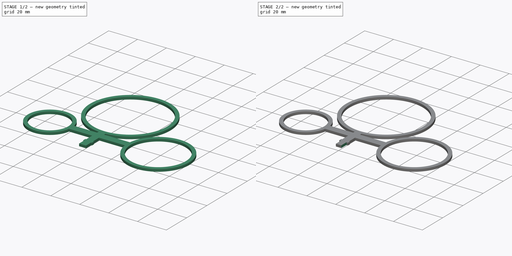
[diagram: build sequence overview — one tinted view per stage of 2, left to right]
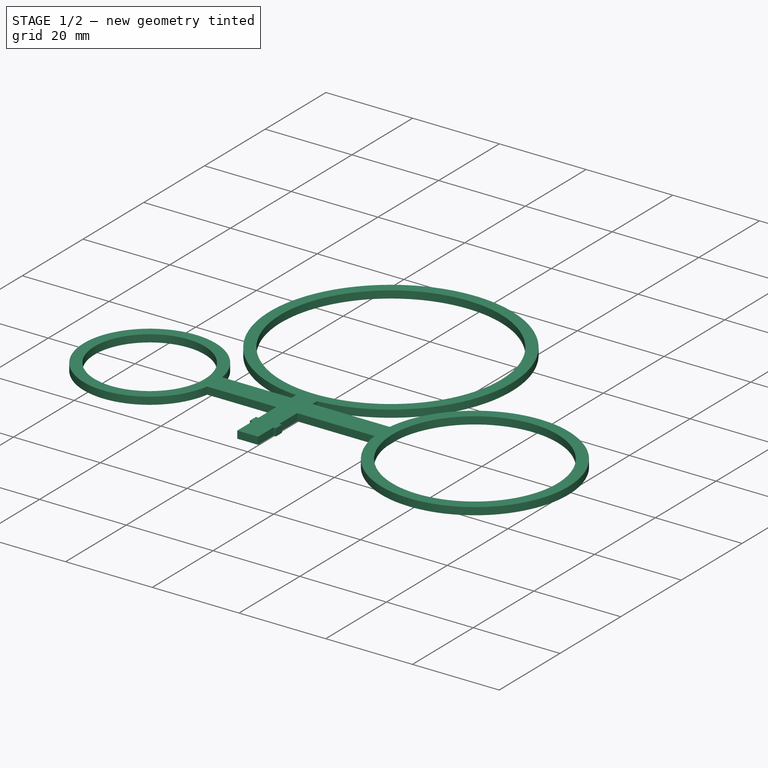
[diagram: stage 1 of 2 — iso view after this stage's code; geometry added in this stage tinted green]
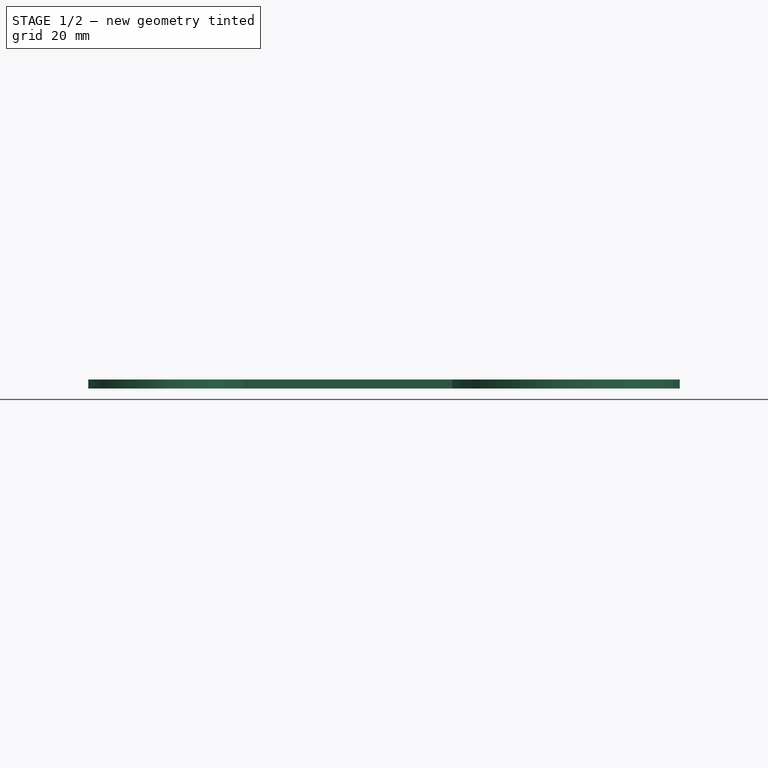
[diagram: stage 1 of 2 — front view after this stage's code; geometry added in this stage tinted green]
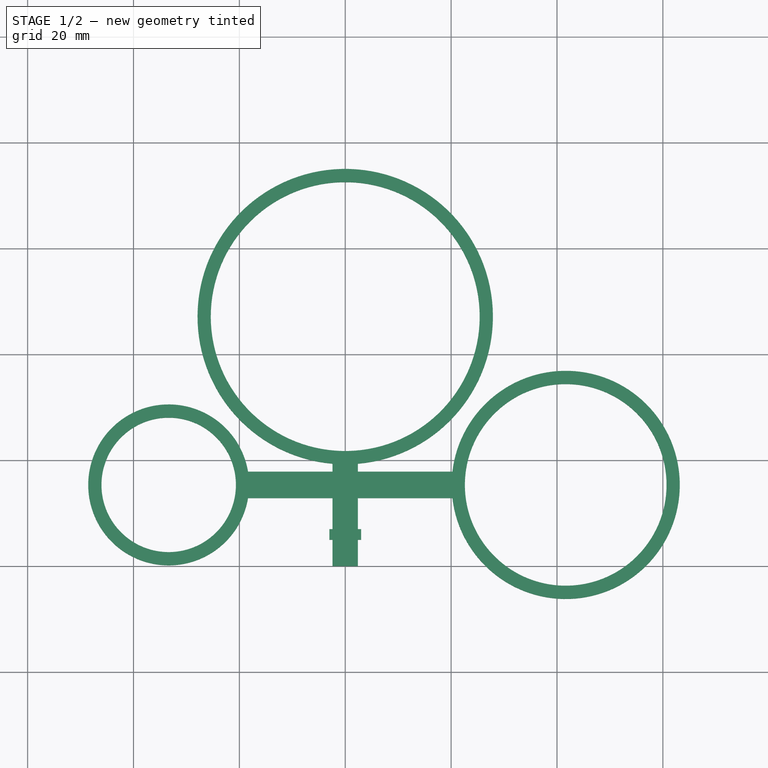
[diagram: stage 1 of 2 — top view after this stage's code; geometry added in this stage tinted green]
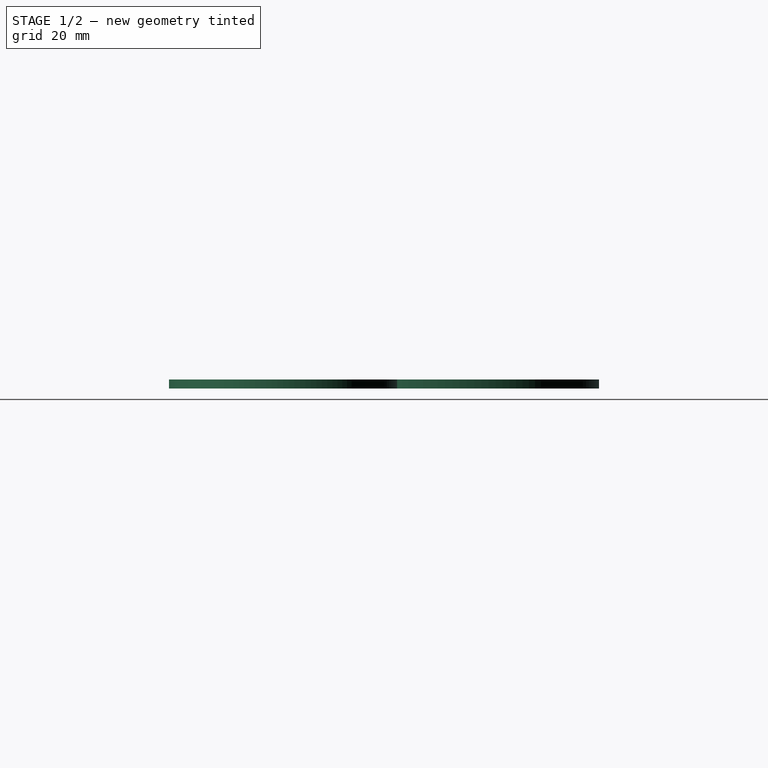
[diagram: stage 1 of 2 — right view after this stage's code; geometry added in this stage tinted green]
FCSTD DOCUMENT  (FreeCAD 1.0R39285 (Git))
Label: Target1
License: All rights reserved
LicenseURL: https://en.wikipedia.org/wiki/All_rights_reserved
objects: Sketcher::SketchObject×2, PartDesign::Pad×1, PartDesign::Pocket×1, PartDesign::Body×1, App::Part×1
note: 11 computed .brp shape members not serialized (recipe doc carries the construction recipe); baked Part::Feature solids carry a one-line shape summary decoded from their .brp

FEATURE [Sketcher::SketchObject] Sketch
  ArcFitTolerance = 1e-06
  AttachmentSupport = -> [XY_Plane001]
  FullyConstrained = false
  MakeInternals = false
  MapMode = 5
  sketch-geometry (19):
    g0: LineSegment StartX=-2.4 StartY=19.3534 StartZ=0 EndX=-2.4 EndY=17.8527 EndZ=0
    g1: LineSegment StartX=-2.4 StartY=0 StartZ=0 EndX=2.4 EndY=0 EndZ=0
    g2: LineSegment StartX=2.4 StartY=0 StartZ=0 EndX=2.4 EndY=12.8527 EndZ=0
    g3: Circle CenterX=0 CenterY=47.15 CenterZ=0 NormalX=0 NormalY=0 NormalZ=1 AngleXU=0 Radius=25.4
    g4: ArcOfCircle CenterX=0 CenterY=47.15 CenterZ=0 NormalX=0 NormalY=0 NormalZ=1 AngleXU=0 Radius=27.9 StartAngle=4.79852 EndAngle=10.9094
    g5: LineSegment StartX=-3 StartY=7 StartZ=0 EndX=-3 EndY=5 EndZ=0
    g6: LineSegment StartX=-3 StartY=5 StartZ=0 EndX=3 EndY=5 EndZ=0
    g7: LineSegment StartX=3 StartY=5 StartZ=0 EndX=3 EndY=7 EndZ=0
    g8: LineSegment StartX=3 StartY=7 StartZ=0 EndX=-3 EndY=7 EndZ=0
    g9: LineSegment StartX=-18.3571 StartY=12.8527 StartZ=0 EndX=-2.4 EndY=12.8527 EndZ=0
    g10: LineSegment StartX=20.2454 StartY=17.8527 StartZ=0 EndX=2.4 EndY=17.8527 EndZ=0
    g11: Circle CenterX=41.6499 CenterY=15.3527 CenterZ=0 NormalX=0 NormalY=0 NormalZ=1 AngleXU=0 Radius=19.05
    g12: Circle CenterX=-33.3501 CenterY=15.3527 CenterZ=0 NormalX=0 NormalY=0 NormalZ=1 AngleXU=0 Radius=12.7
    g13: ArcOfCircle CenterX=-33.3501 CenterY=15.3527 CenterZ=0 NormalX=0 NormalY=0 NormalZ=1 AngleXU=0 Radius=15.2 StartAngle=0.165224 EndAngle=6.11796
    g14: ArcOfCircle CenterX=41.6499 CenterY=15.3527 CenterZ=0 NormalX=0 NormalY=0 NormalZ=1 AngleXU=0 Radius=21.55 StartAngle=3.25786 EndAngle=9.30851
    g15: LineSegment StartX=-2.4 StartY=17.8527 StartZ=0 EndX=-18.3571 EndY=17.8527 EndZ=0
    g16: LineSegment StartX=2.4 StartY=12.8527 StartZ=0 EndX=20.2454 EndY=12.8527 EndZ=0
    g17: LineSegment StartX=-2.4 StartY=12.8527 StartZ=0 EndX=-2.4 EndY=0 EndZ=0
    g18: LineSegment StartX=2.4 StartY=17.8527 StartZ=0 EndX=2.4 EndY=19.3534 EndZ=0
  constraints (45):
    c: Coincident(g17,g1)
    c: Coincident(g1,g2)
    c: Vertical(g0)
    c: Vertical(g2)
    c: Horizontal(g1)
    c: DistanceY(g-1,g17) = 0
    c: DistanceX(g-1,g1) = 2.4
    c: Diameter(g3) = 50.8
    c: PointOnObject(g3,g-2)
    c: Diameter(g4) = 55.8
    c: Coincident(g4,g3)
    c: DistanceY(g-1,g3) = 47.15
    c: Coincident(g4,g0)
    c: Coincident(g4,g18)
    c: DistanceX(g0,g18) = 4.8
    c: Coincident(g5,g6)
    c: Coincident(g6,g7)
    c: Coincident(g7,g8)
    c: Coincident(g8,g5)
    c: Vertical(g5)
    c: Vertical(g7)
    c: Horizontal(g6)
    c: Horizontal(g8)
    c: Distance(g5,g7) = 6
    c: Distance(g6,g8) = 2
    c: DistanceX(g5,g-1) = 3
    c: DistanceY(g-1,g6) = 5
    c: Horizontal(g9)
    c: Horizontal(g10)
    c: Diameter(g11) = 38.1
    c: Diameter(g12) = 25.4
    c: Diameter(g13) = 30.4
    c: Coincident(g13,g12)
    c: Diameter(g14) = 43.1
    c: Coincident(g14,g11)
    c: Coincident(g14,g10)
    c: Coincident(g14,g16)
    c: Coincident(g13,g9)
    c: Coincident(g13,g15)
    c: PointOnObject(g10,g18)
    c: PointOnObject(g9,g17)
    c: Coincident(g0,g15)
    c: PointOnObject(g17,g9)
    c: Coincident(g2,g16)
    c: PointOnObject(g18,g10)
FEATURE [PartDesign::Pad] Pad
  Direction = (0,0,1)
  Length = 1.7
  Length2 = 10
  Profile = -> Sketch
  ReferenceAxis = -> Sketch [N_Axis]
  Refine = true
  Suppressed = false
  Type = 0
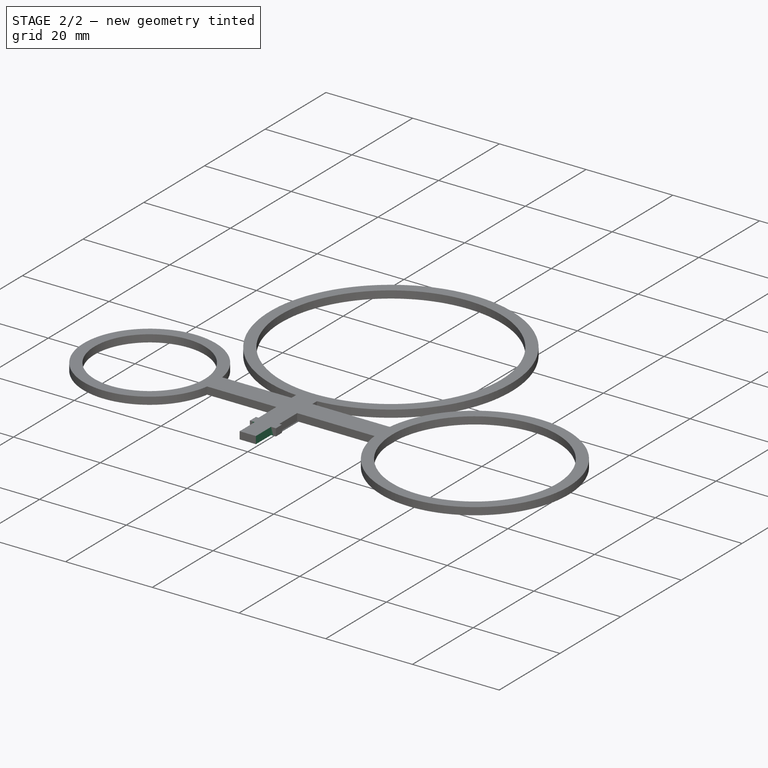
[diagram: stage 2 of 2 — iso view after this stage's code; geometry added in this stage tinted green]
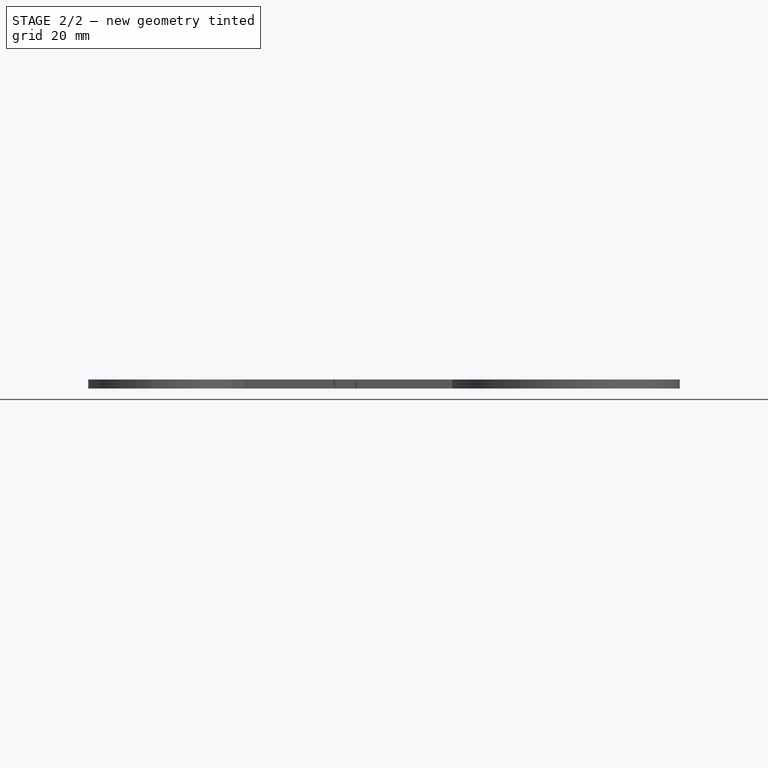
[diagram: stage 2 of 2 — front view after this stage's code; geometry added in this stage tinted green]
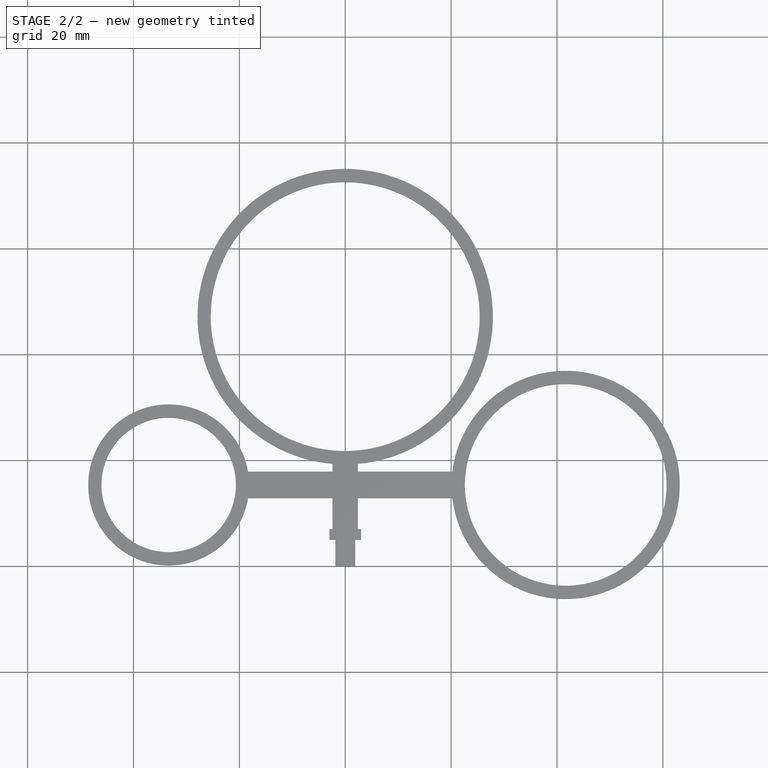
[diagram: stage 2 of 2 — top view after this stage's code; geometry added in this stage tinted green]
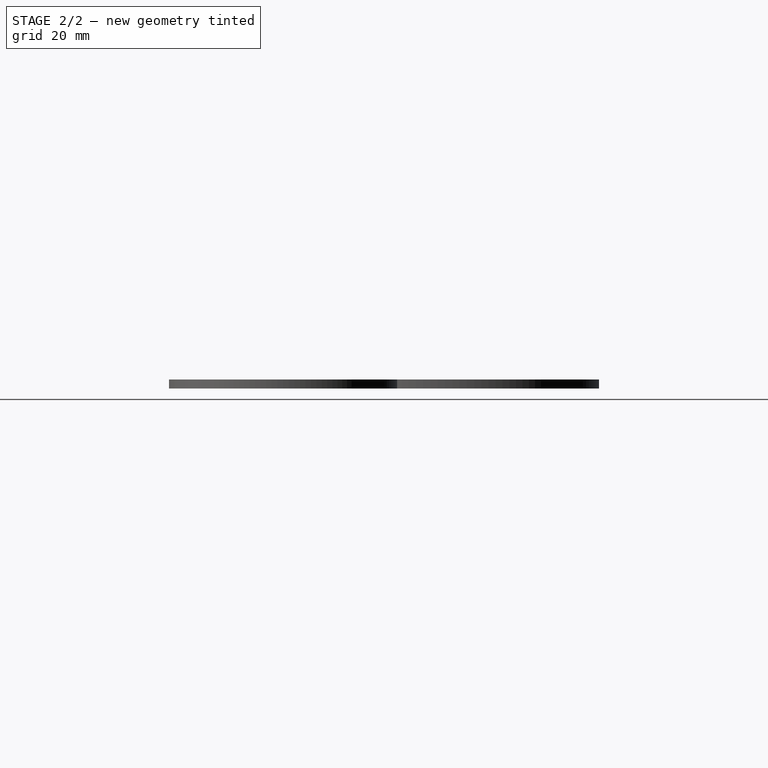
[diagram: stage 2 of 2 — right view after this stage's code; geometry added in this stage tinted green]
FEATURE [Sketcher::SketchObject] Sketch001
  ArcFitTolerance = 1e-06
  AttachmentSupport = -> [Pad]
  FullyConstrained = false
  MakeInternals = false
  MapMode = 5
  Placement = pos=(0,0,1.7) rot=(0,0,1;0rad)
  sketch-geometry (8):
    g0: LineSegment StartX=-3.58365 StartY=0 StartZ=0 EndX=-1.86323 EndY=0 EndZ=0
    g1: LineSegment StartX=-1.86323 StartY=0 StartZ=0 EndX=-1.86323 EndY=4.98921 EndZ=0
    g2: LineSegment StartX=-1.86323 StartY=4.98921 StartZ=0 EndX=-3.58365 EndY=4.98921 EndZ=0
    g3: LineSegment StartX=-3.58365 StartY=4.98921 StartZ=0 EndX=-3.58365 EndY=0 EndZ=0
    g4: LineSegment StartX=4.15821 StartY=0 StartZ=0 EndX=4.15821 EndY=4.98921 EndZ=0
    g5: LineSegment StartX=4.15821 StartY=4.98921 StartZ=0 EndX=1.88727 EndY=4.98921 EndZ=0
    g6: LineSegment StartX=1.88727 StartY=4.98921 StartZ=0 EndX=1.88727 EndY=0 EndZ=0
    g7: LineSegment StartX=1.88727 StartY=0 StartZ=0 EndX=4.15821 EndY=0 EndZ=0
  constraints (18):
    c: Coincident(g0,g1)
    c: Coincident(g1,g2)
    c: Coincident(g2,g3)
    c: Coincident(g3,g0)
    c: Horizontal(g0)
    c: Horizontal(g2)
    c: Vertical(g1)
    c: Vertical(g3)
    c: PointOnObject(g0,g-1)
    c: Coincident(g4,g5)
    c: Coincident(g5,g6)
    c: Coincident(g6,g7)
    c: Coincident(g7,g4)
    c: Vertical(g4)
    c: Vertical(g6)
    c: Horizontal(g5)
    c: Horizontal(g7)
    c: PointOnObject(g4,g-1)
FEATURE [PartDesign::Pocket] Pocket
  BaseFeature = -> Pad
  Direction = (0,0,-1)
  Length = 5
  Length2 = 5
  Profile = -> Sketch001
  ReferenceAxis = -> Sketch001 [N_Axis]
  Refine = true
  Suppressed = false
  Type = 0
FEATURE [PartDesign::Body] Body  label="Target1Body"
  AllowCompound = false
  Group = -> [Sketch,Pad,Sketch001,Pocket]
  Origin = -> Origin001
  Tip = -> Pocket
FEATURE [App::Part] Part  label="Target1"
  Group = -> [Body]
  Origin = -> Origin
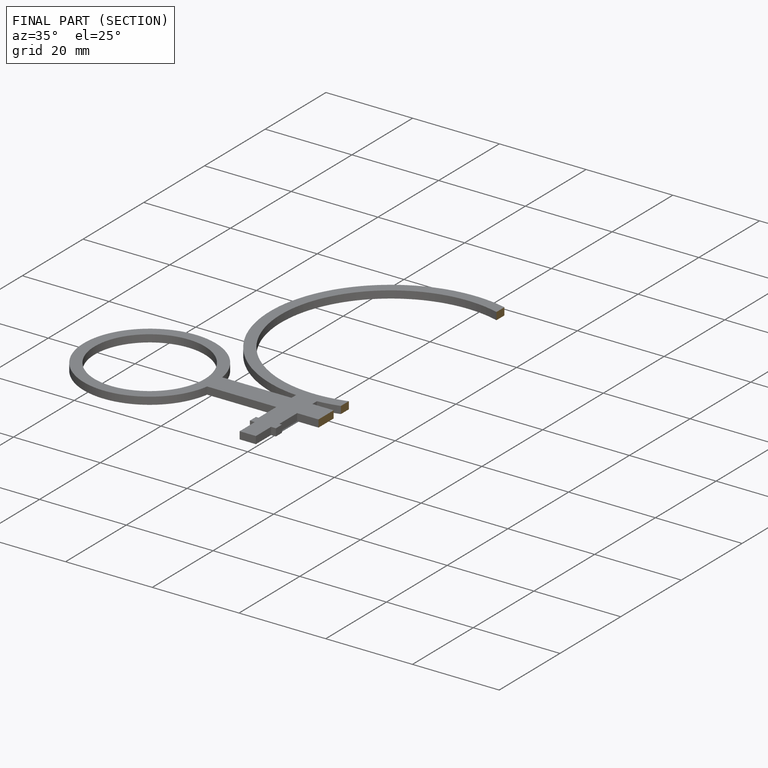
[diagram: finished part — half-section view (interior)]
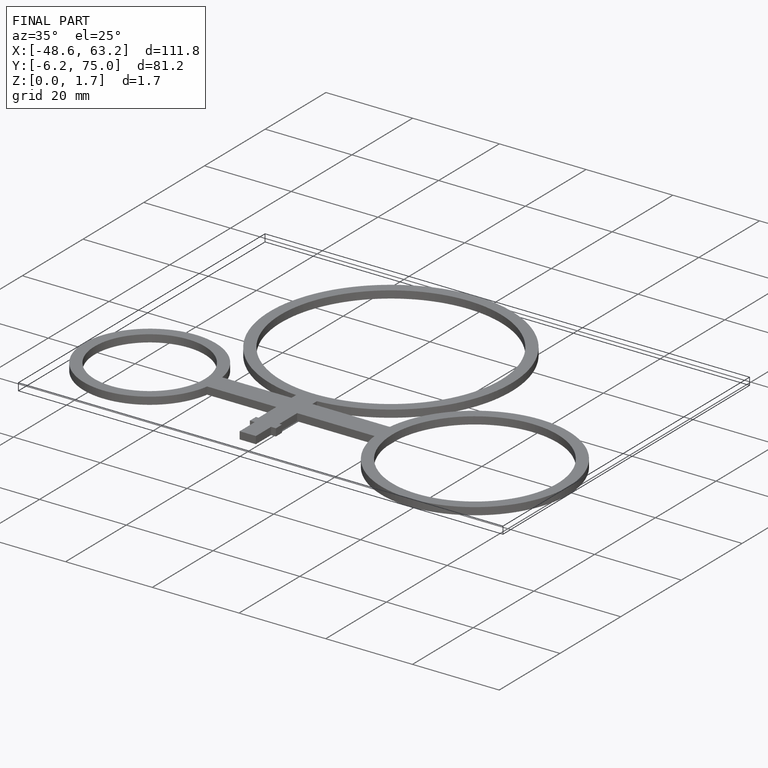
[diagram: finished part — iso view with bounding-box wireframe]
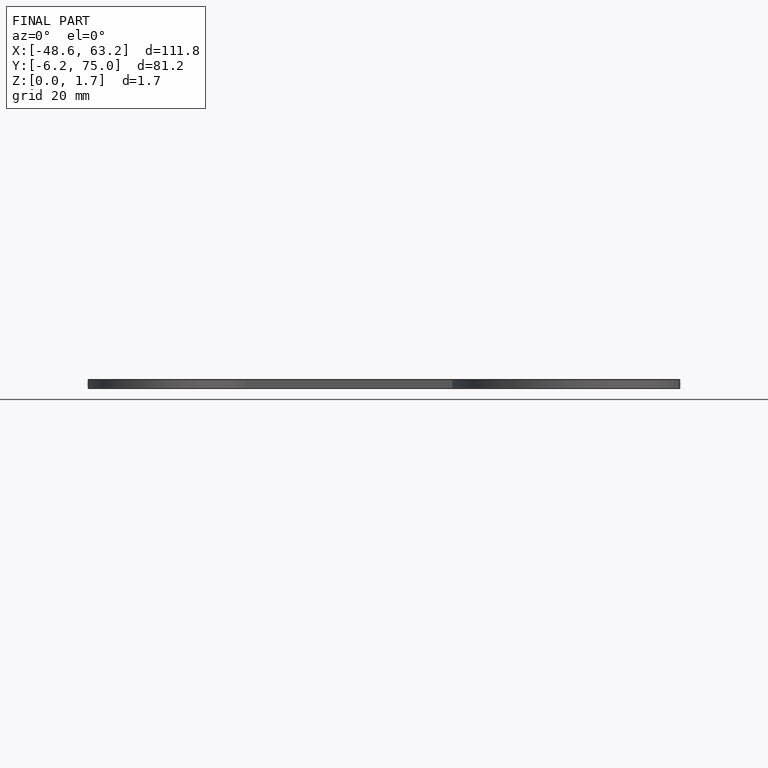
[diagram: finished part — front view with bounding-box wireframe]
